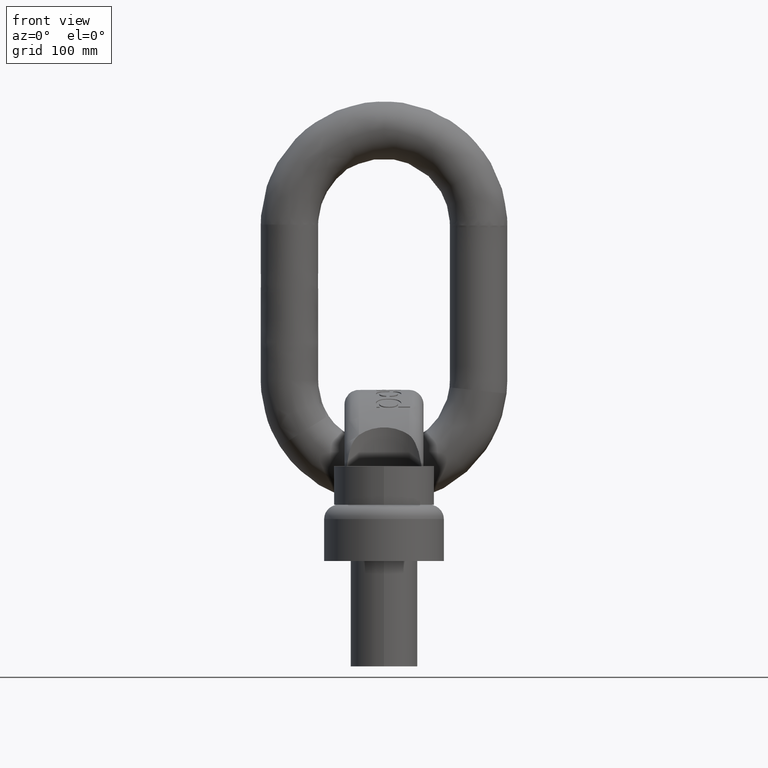
[diagram: clean part render]
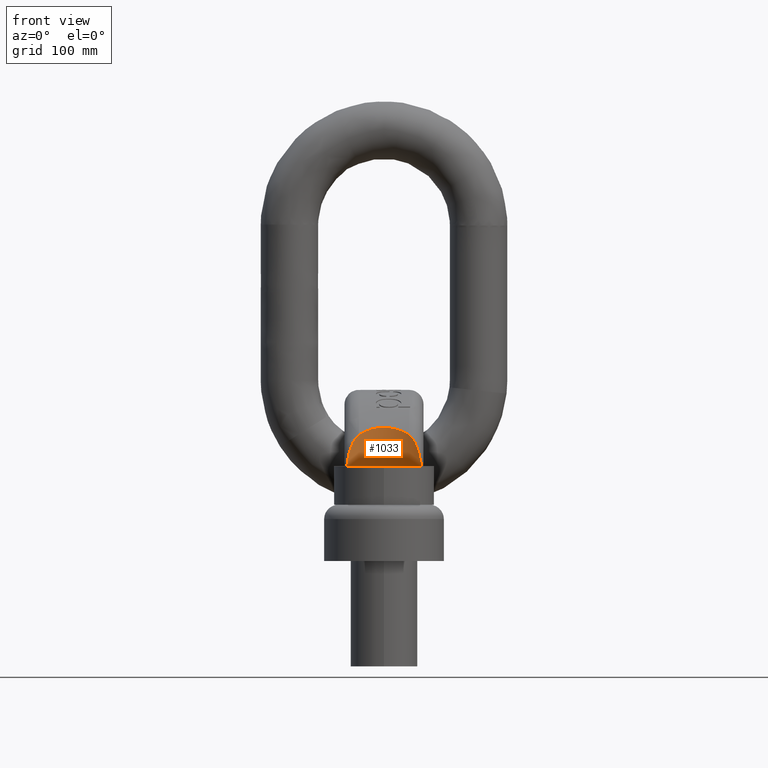
[diagram: same view with one face highlighted and labeled with its STEP entity id]
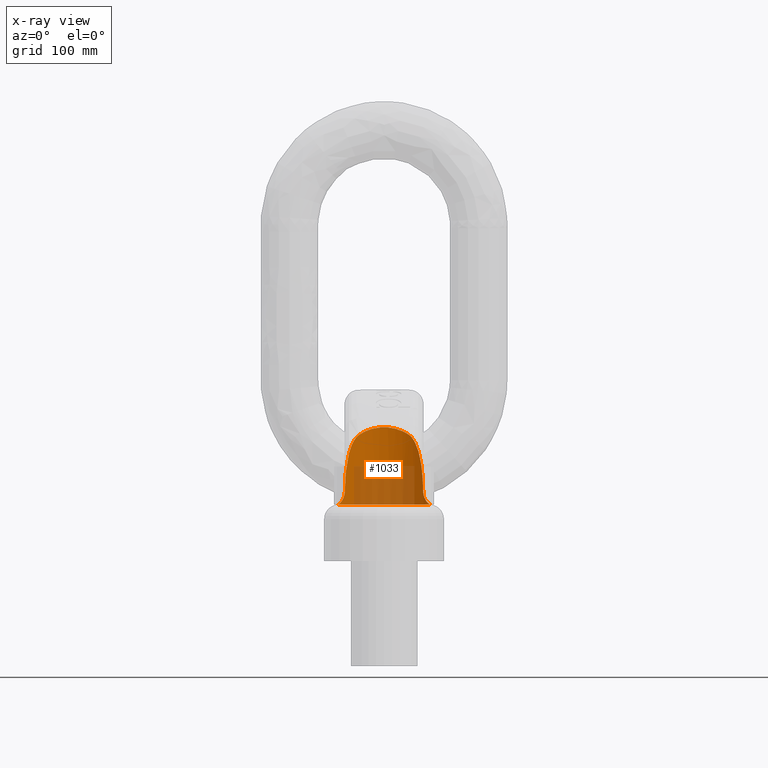
[diagram: x-ray of the same camera — body ghosted, the highlighted face saturated]
A machine part, front view. The second image highlights one B-rep face of the part: STEP entity #1033.
The next image is the same camera in x-ray: the body ghosted, the highlighted face saturated — about 43% of this face is hidden behind the body in this view.
In plain terms, the highlighted cylindrical surface (partial cylindrical patch) has radius 44 mm, axis along (0, 0, -1).
Its self-contained STEP definition (entity closure, byte-faithful):
#883=FACE_OUTER_BOUND('',#1293,.T.);
#1033=ADVANCED_FACE('',(#883),#1160,.F.);
#1160=CYLINDRICAL_SURFACE('',#3634,44.);
#1293=EDGE_LOOP('',(#2309,#2310,#2311,#2312,#2313,#2314));
#1457=B_SPLINE_CURVE_WITH_KNOTS('',3,(#4796,#4797,#4798,#4799,#4800,#4801,
#4802,#4803,#4804,#4805),.UNSPECIFIED.,.F.,.F.,(4,2,2,2,4),(0.,0.25,0.5,
0.75,1.),.UNSPECIFIED.);
#1459=B_SPLINE_CURVE_WITH_KNOTS('',3,(#4816,#4817,#4818,#4819,#4820,#4821,
#4822,#4823,#4824,#4825),.UNSPECIFIED.,.F.,.F.,(4,2,2,2,4),(0.,0.5,0.75,
0.875,1.),.UNSPECIFIED.);
#1473=B_SPLINE_CURVE_WITH_KNOTS('',3,(#4907,#4908,#4909,#4910,#4911,#4912,
#4913,#4914,#4915,#4916),.UNSPECIFIED.,.F.,.F.,(4,2,2,2,4),(0.,0.125,0.250000000000001,
0.5,1.),.UNSPECIFIED.);
#1506=B_SPLINE_CURVE_WITH_KNOTS('',3,(#5668,#5669,#5670,#5671,#5672,#5673),
 .UNSPECIFIED.,.F.,.F.,(4,2,4),(0.,0.5,1.),.UNSPECIFIED.);
#1507=B_SPLINE_CURVE_WITH_KNOTS('',3,(#5692,#5693,#5694,#5695,#5696,#5697),
 .UNSPECIFIED.,.F.,.F.,(4,2,4),(0.,0.5,1.),.UNSPECIFIED.);
#2309=ORIENTED_EDGE('',*,*,#3177,.T.);
#2310=ORIENTED_EDGE('',*,*,#3239,.F.);
#2311=ORIENTED_EDGE('',*,*,#3102,.T.);
#2312=ORIENTED_EDGE('',*,*,#3098,.F.);
#2313=ORIENTED_EDGE('',*,*,#3118,.T.);
#2314=ORIENTED_EDGE('',*,*,#3238,.F.);
#2833=VERTEX_POINT('',#4795);
#2834=VERTEX_POINT('',#4806);
#2837=VERTEX_POINT('',#4826);
#2848=VERTEX_POINT('',#4906);
#2889=VERTEX_POINT('',#5094);
#2893=VERTEX_POINT('',#5105);
#3098=EDGE_CURVE('',#2833,#2834,#1457,.T.);
#3102=EDGE_CURVE('',#2837,#2834,#1459,.T.);
#3118=EDGE_CURVE('',#2833,#2848,#1473,.T.);
#3177=EDGE_CURVE('',#2889,#2893,#3461,.T.);
#3238=EDGE_CURVE('',#2889,#2848,#1506,.T.);
#3239=EDGE_CURVE('',#2837,#2893,#1507,.T.);
#3461=CIRCLE('',#3576,44.);
#3576=AXIS2_PLACEMENT_3D('',#5106,#3881,#3882);
#3634=AXIS2_PLACEMENT_3D('',#5800,#4006,#4007);
#3881=DIRECTION('',(0.,0.,-1.));
#3882=DIRECTION('',(-1.,0.,0.));
#4006=DIRECTION('',(0.,0.,-1.));
#4007=DIRECTION('',(-1.,0.,0.));
#4795=CARTESIAN_POINT('',(-21.,-76.3347701416376,105.21514293913));
#4796=CARTESIAN_POINT('',(-21.,-76.3347701416376,105.21514293913));
#4797=CARTESIAN_POINT('',(-18.1422205312424,-74.7826425824908,107.250374572622));
#4798=CARTESIAN_POINT('',(-14.82380413535,-73.4100713895165,108.879058559708));
#4799=CARTESIAN_POINT('',(-7.72936616109583,-71.5290415378723,111.044146386091));
#4800=CARTESIAN_POINT('',(-3.85922945944318,-71.0019968918907,111.612045673497));
#4801=CARTESIAN_POINT('',(3.81356026995207,-70.9980149585354,111.616421138111));
#4802=CARTESIAN_POINT('',(7.69075191571299,-71.5208728712564,111.053335832557));
#4803=CARTESIAN_POINT('',(14.8163923059256,-73.4060499598391,108.883898688095));
#4804=CARTESIAN_POINT('',(18.1325751924233,-74.7774039710576,107.257243716618));
#4805=CARTESIAN_POINT('',(21.,-76.3347701416376,105.21514293913));
#4806=CARTESIAN_POINT('',(21.,-76.3347701416376,105.21514293913));
#4816=CARTESIAN_POINT('',(32.7735598489485,-85.6419725657974,57.7994440326957));
#4817=CARTESIAN_POINT('',(32.6006598031004,-85.4489572137548,66.3428760689434));
#4818=CARTESIAN_POINT('',(32.1816272698811,-84.9260233552347,74.8855685653609));
#4819=CARTESIAN_POINT('',(30.0076961517678,-82.8042941853259,87.3580154209365));
#4820=CARTESIAN_POINT('',(29.0253348768012,-81.8783324440381,91.4623833930393));
#4821=CARTESIAN_POINT('',(26.8333270135531,-80.1166043369736,97.1966428832353));
#4822=CARTESIAN_POINT('',(25.9869926763788,-79.4711166511479,99.0303882468356));
#4823=CARTESIAN_POINT('',(23.8862423116239,-78.0260528397509,102.442356396573));
#4824=CARTESIAN_POINT('',(22.6230595046191,-77.216292111683,104.059244773105));
#4825=CARTESIAN_POINT('',(21.,-76.3347701416376,105.21514293913));
#4826=CARTESIAN_POINT('',(32.7735598489494,-85.6419725657926,57.7994440326954));
#4906=CARTESIAN_POINT('',(-32.7735598489485,-85.6419725657974,57.7994440326954));
#4907=CARTESIAN_POINT('',(-21.,-76.3347701416376,105.21514293913));
#4908=CARTESIAN_POINT('',(-22.625890843137,-77.2178298785369,104.057228371987));
#4909=CARTESIAN_POINT('',(-23.8573976278812,-78.0067599149464,102.48528351515));
#4910=CARTESIAN_POINT('',(-25.9906570422169,-79.4730949831103,99.0283121234965));
#4911=CARTESIAN_POINT('',(-26.8411719495211,-80.1225767937629,97.1796105789036));
#4912=CARTESIAN_POINT('',(-29.0382071983412,-81.8893496404993,91.421661264008));
#4913=CARTESIAN_POINT('',(-30.0169262553306,-82.8131508681076,87.3101375019834));
#4914=CARTESIAN_POINT('',(-32.1734053472541,-84.9183035087793,74.922548288716));
#4915=CARTESIAN_POINT('',(-32.6004923704093,-85.4487703018333,66.3511493450438));
#4916=CARTESIAN_POINT('',(-32.7735598489485,-85.6419725657974,57.7994440326954));
#5094=CARTESIAN_POINT('',(-39.1432389547009,-94.9050542639403,47.));
#5105=CARTESIAN_POINT('',(39.1432389547009,-94.9050542639402,47.));
#5106=CARTESIAN_POINT('',(0.,-115.,47.));
#5668=CARTESIAN_POINT('',(-39.1432389546987,-94.905054263936,47.));
#5669=CARTESIAN_POINT('',(-37.8524613121801,-92.390729599311,47.3819419548218));
#5670=CARTESIAN_POINT('',(-36.3572984843657,-90.128705180692,48.5030044931936));
#5671=CARTESIAN_POINT('',(-33.8159122113193,-86.7702543336547,52.2506927970565));
#5672=CARTESIAN_POINT('',(-32.8315452412152,-85.7067040171211,54.9342379797064));
#5673=CARTESIAN_POINT('',(-32.7735598489485,-85.6419725657974,57.7994440326954));
#5692=CARTESIAN_POINT('',(32.7735598489494,-85.6419725657926,57.7994440326954));
#5693=CARTESIAN_POINT('',(32.8313155311039,-85.706447582377,54.9455885419425));
#5694=CARTESIAN_POINT('',(33.8082267819376,-86.7612878666979,52.2673570489994));
#5695=CARTESIAN_POINT('',(36.3469118253587,-90.1137977616907,48.513028265824));
#5696=CARTESIAN_POINT('',(37.8555282496092,-92.3967037316236,47.3810344460159));
#5697=CARTESIAN_POINT('',(39.1432389546987,-94.905054263936,47.));
#5800=CARTESIAN_POINT('',(0.,-115.,152.6));